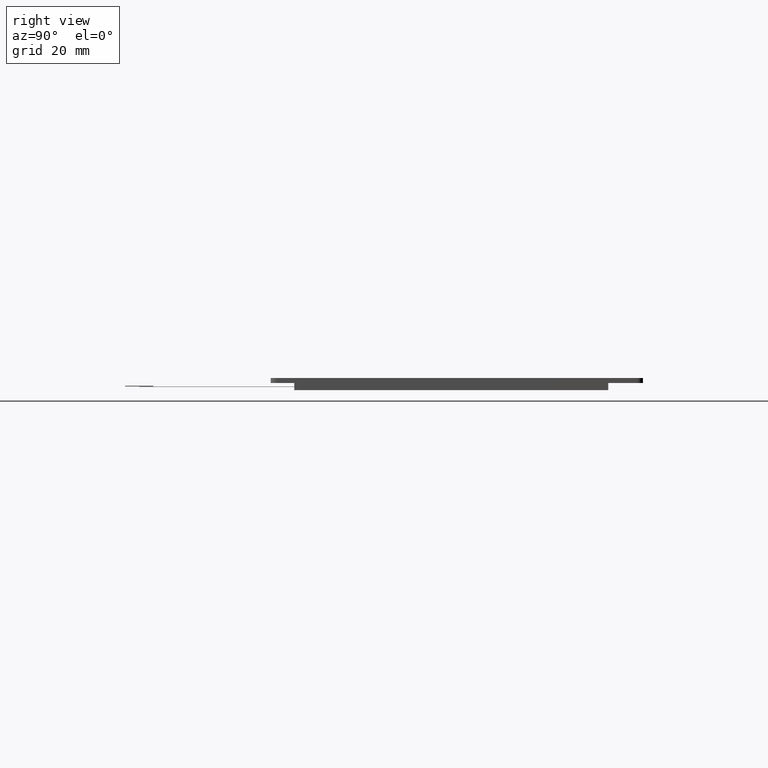
[diagram: clean part render]
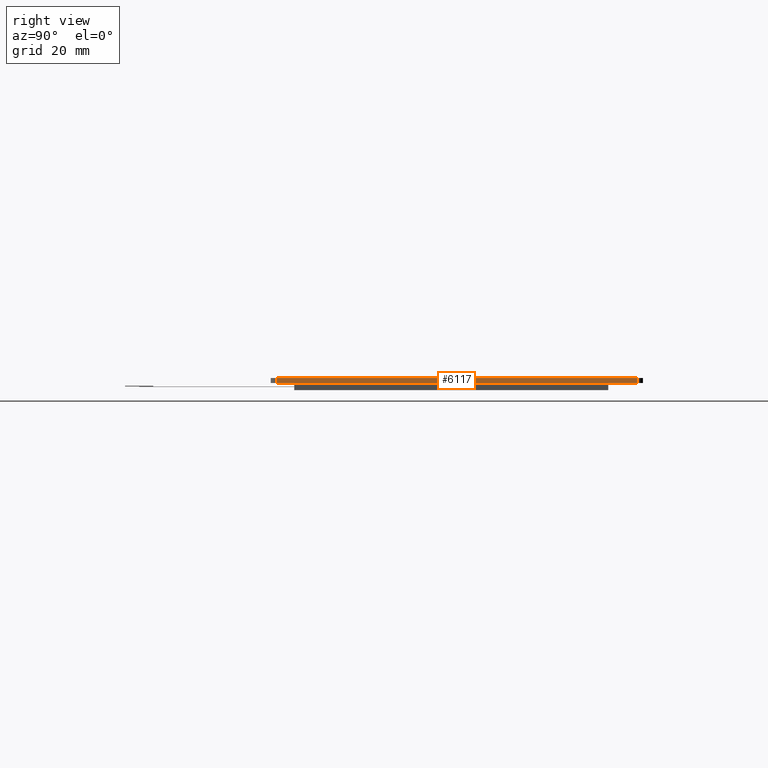
[diagram: same view with one face highlighted and labeled with its STEP entity id]
A machine part, right view. The second image highlights one B-rep face of the part: STEP entity #6117.
In plain terms, the highlighted planar face has unit normal (1, 0, 0).
Its self-contained STEP definition (entity closure, byte-faithful):
#63=FACE_OUTER_BOUND('',#373,.T.);
#373=EDGE_LOOP('',(#4026,#4027,#4028,#4029));
#677=LINE('',#8317,#1565);
#682=LINE('',#8328,#1570);
#686=LINE('',#8338,#1574);
#697=LINE('',#8365,#1585);
#1565=VECTOR('',#6777,10.);
#1570=VECTOR('',#6784,10.);
#1574=VECTOR('',#6794,10.);
#1585=VECTOR('',#6821,10.);
#2467=VERTEX_POINT('',#8303);
#2473=VERTEX_POINT('',#8315);
#2478=VERTEX_POINT('',#8327);
#2481=VERTEX_POINT('',#8337);
#3077=EDGE_CURVE('',#2473,#2467,#677,.T.);
#3082=EDGE_CURVE('',#2467,#2478,#682,.T.);
#3087=EDGE_CURVE('',#2481,#2478,#686,.T.);
#3101=EDGE_CURVE('',#2481,#2473,#697,.T.);
#4026=ORIENTED_EDGE('',*,*,#3082,.F.);
#4027=ORIENTED_EDGE('',*,*,#3077,.F.);
#4028=ORIENTED_EDGE('',*,*,#3101,.F.);
#4029=ORIENTED_EDGE('',*,*,#3087,.T.);
#5787=PLANE('',#6455);
#6117=ADVANCED_FACE('',(#63),#5787,.T.);
#6455=AXIS2_PLACEMENT_3D('',#8366,#6822,#6823);
#6777=DIRECTION('',(0.,1.,0.));
#6784=DIRECTION('',(0.,0.,-1.));
#6794=DIRECTION('',(0.,1.,0.));
#6821=DIRECTION('',(0.,0.,1.));
#6822=DIRECTION('center_axis',(1.,0.,0.));
#6823=DIRECTION('ref_axis',(0.,1.,0.));
#8303=CARTESIAN_POINT('',(91.5,63.98,1.8));
#8315=CARTESIAN_POINT('',(91.5,-64.02,1.8));
#8317=CARTESIAN_POINT('',(91.5,-66.02,1.8));
#8327=CARTESIAN_POINT('',(91.5,63.98,0.));
#8328=CARTESIAN_POINT('',(91.5,63.98,0.));
#8337=CARTESIAN_POINT('',(91.5,-64.02,0.));
#8338=CARTESIAN_POINT('',(91.5,-66.02,0.));
#8365=CARTESIAN_POINT('',(91.5,-64.02,0.));
#8366=CARTESIAN_POINT('Origin',(91.5,-66.02,0.));